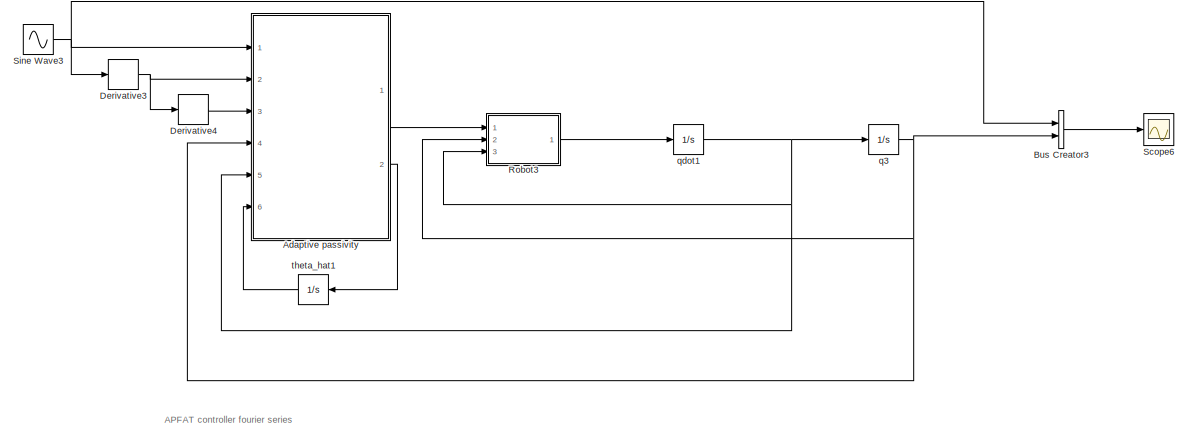
[diagram: root canvas - part 1/5, top center region]
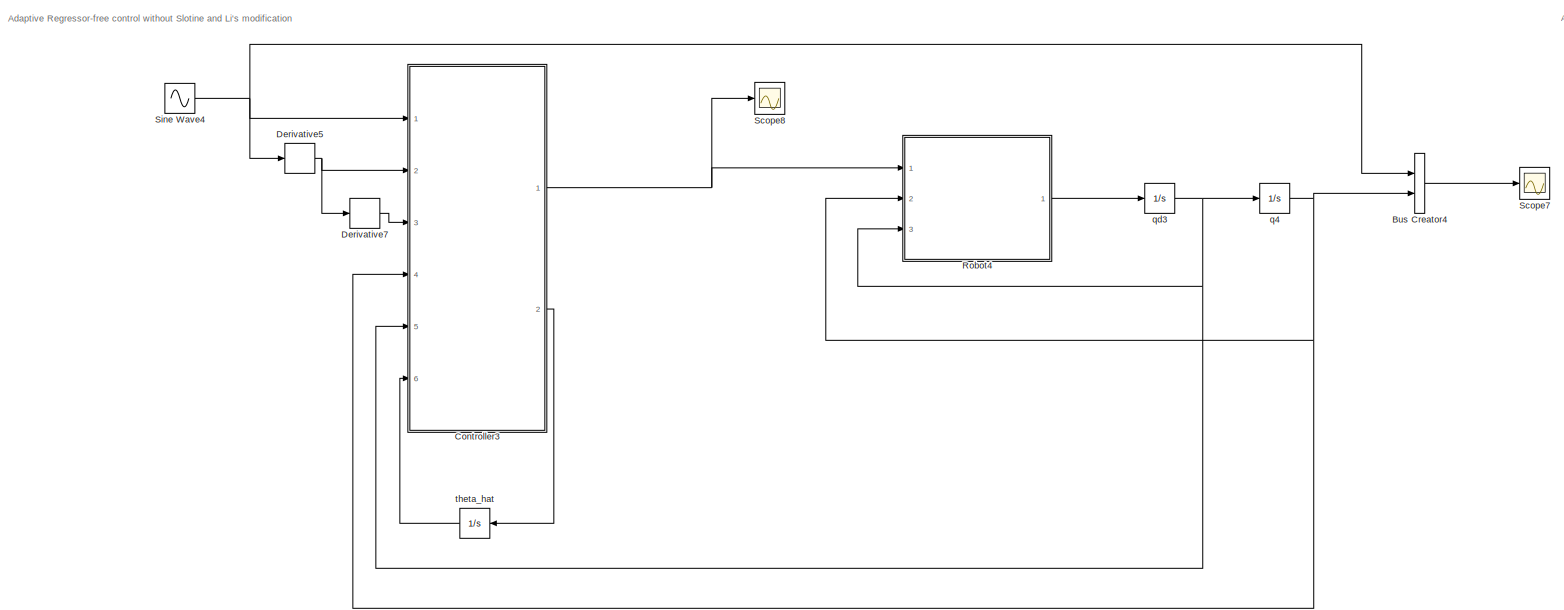
[diagram: root canvas - part 2/5, middle left region]
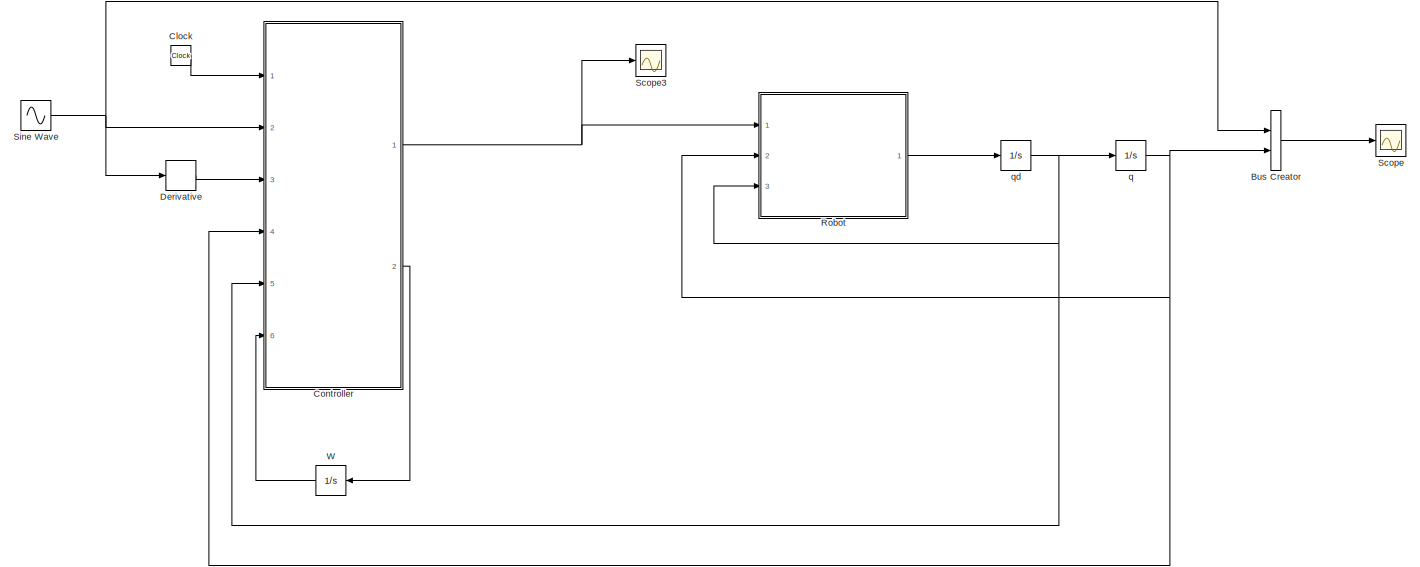
[diagram: root canvas - part 3/5, middle right region]
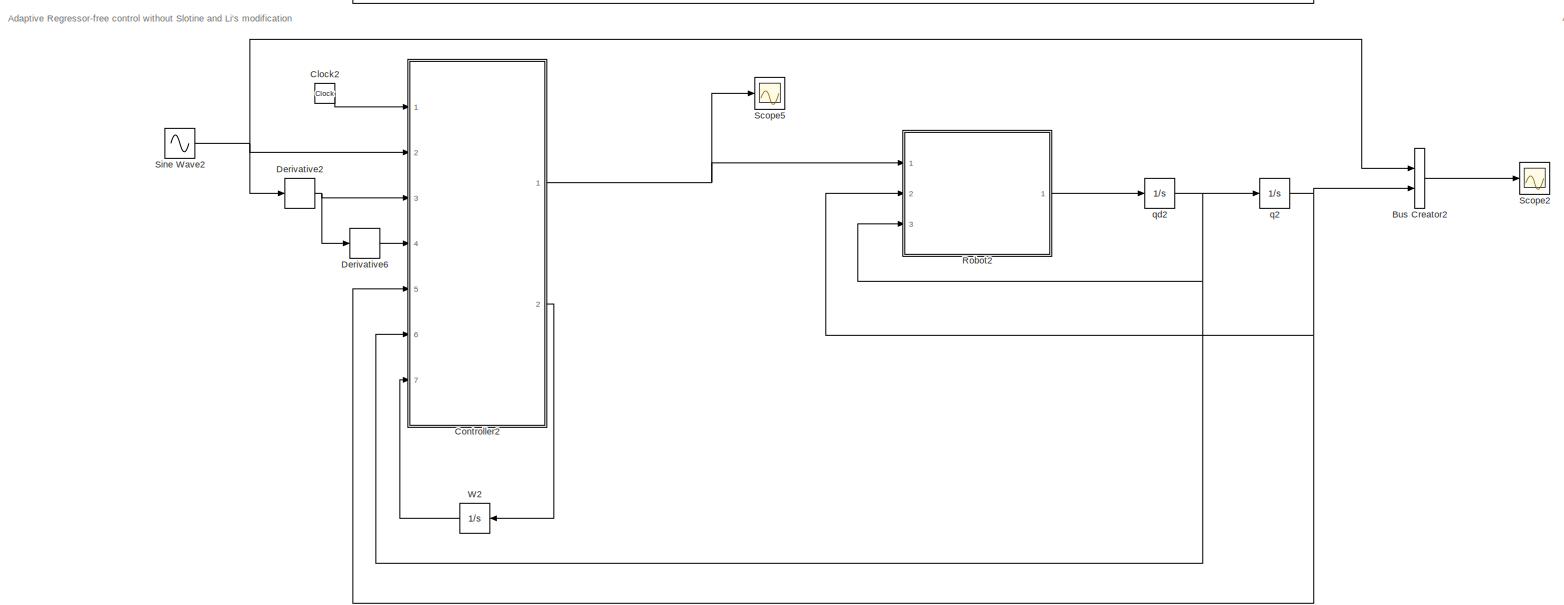
[diagram: root canvas - part 4/5, bottom left region]
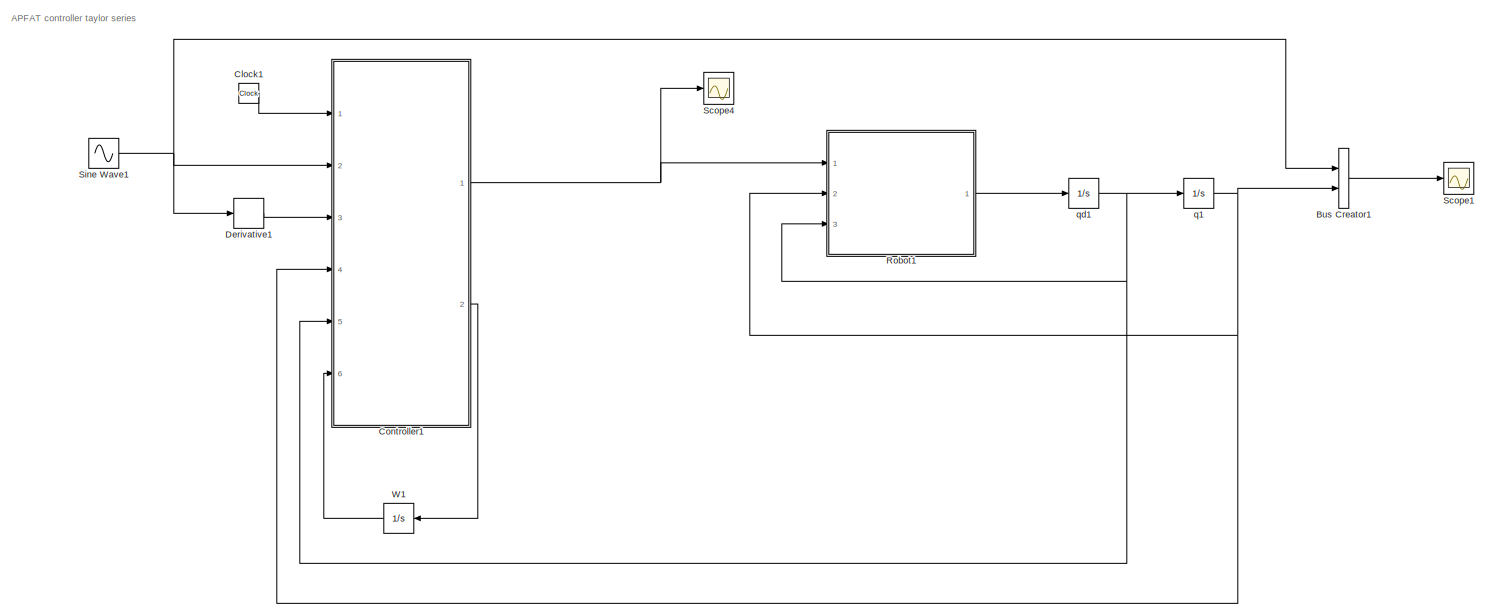
[diagram: root canvas - part 5/5, bottom right region]
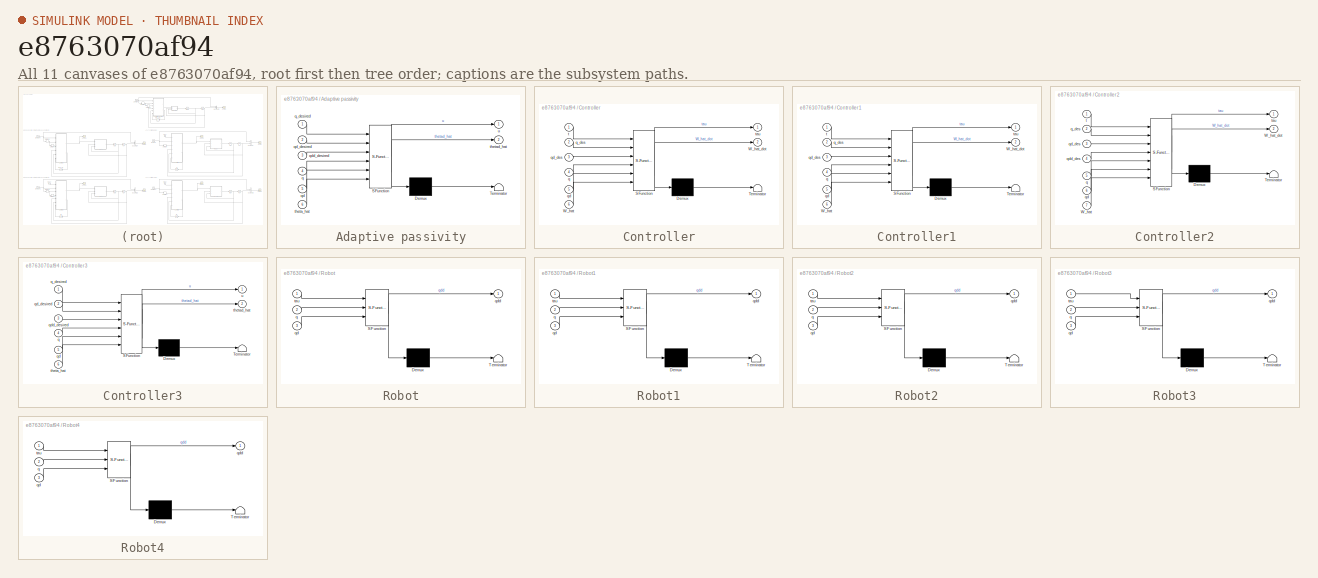
[diagram: thumbnail index - all 11 canvases of the model, root first then tree order]
MODEL slx_e8763070af94
KIND model
CONFIG AbsTol = auto
CONFIG EnableMultiTasking = off
CONFIG FixedStep = auto
CONFIG MaxStep = auto
CONFIG MinStep = auto
CONFIG RelTol = 1e-3
CONFIG SampleTimeConstraint = Unconstrained
CONFIG Solver = VariableStepAuto
CONFIG SolverName = VariableStepAuto
CONFIG StartTime = 0.0
CONFIG StopTime = 15.0
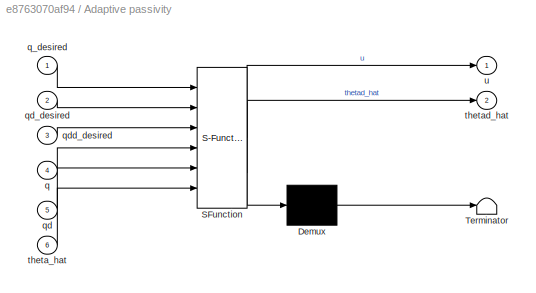
BLOCK [SubSystem] Adaptive passivity
  Commented = on
  ErrorFcn = Stateflow.Translate.translate
  PermitHierarchicalResolution = ExplicitOnly
  Ports = [6, 2]
  RequestExecContextInheritance = off
  SFBlockType = MATLAB Function
  TreatAsAtomicUnit = on
  Variant = off
BLOCK [Demux] Adaptive passivity/ Demux 
  Outputs = 1
  Ports = [1, 1]
BLOCK [S-Function] Adaptive passivity/ SFunction 
  EnableBusSupport = on
  FunctionName = sf_sfun
  PortCounts = [6 3]
  Ports = [6, 3]
  SFcnIsStateOwnerBlock = off
  SFunctionDeploymentMode = off
  Tag = Stateflow S-Function fat 5
BLOCK [Terminator] Adaptive passivity/ Terminator 
BLOCK [Inport] Adaptive passivity/q
  IconDisplay = Port number
  Port = 4
BLOCK [Inport] Adaptive passivity/q_desired
  IconDisplay = Port number
BLOCK [Inport] Adaptive passivity/qd
  IconDisplay = Port number
  Port = 5
BLOCK [Inport] Adaptive passivity/qd_desired
  IconDisplay = Port number
  Port = 2
BLOCK [Inport] Adaptive passivity/qdd_desired
  IconDisplay = Port number
  Port = 3
BLOCK [Inport] Adaptive passivity/theta_hat
  IconDisplay = Port number
  Port = 6
BLOCK [Outport] Adaptive passivity/thetad_hat
  IconDisplay = Port number
  Port = 2
BLOCK [Outport] Adaptive passivity/u
  IconDisplay = Port number
BLOCK [BusCreator] Bus Creator
  DisplayOption = bar
  InheritFromInputs = on
  Inputs = 2
  Ports = [2, 1]
BLOCK [BusCreator] Bus Creator1
  DisplayOption = bar
  InheritFromInputs = on
  Inputs = 2
  Ports = [2, 1]
BLOCK [BusCreator] Bus Creator2
  DisplayOption = bar
  InheritFromInputs = on
  Inputs = 2
  Ports = [2, 1]
BLOCK [BusCreator] Bus Creator3
  Commented = on
  DisplayOption = bar
  InheritFromInputs = on
  Inputs = 2
  Ports = [2, 1]
BLOCK [BusCreator] Bus Creator4
  DisplayOption = bar
  InheritFromInputs = on
  Inputs = 2
  Ports = [2, 1]
BLOCK [Clock] Clock
BLOCK [Clock] Clock1
BLOCK [Clock] Clock2
BLOCK [SubSystem] Controller
  ErrorFcn = Stateflow.Translate.translate
  PermitHierarchicalResolution = ExplicitOnly
  Ports = [6, 2]
  RequestExecContextInheritance = off
  SFBlockType = MATLAB Function
  TreatAsAtomicUnit = on
  Variant = off
BLOCK [Demux] Controller/ Demux 
  Outputs = 1
  Ports = [1, 1]
BLOCK [S-Function] Controller/ SFunction 
  EnableBusSupport = on
  FunctionName = sf_sfun
  PortCounts = [6 3]
  Ports = [6, 3]
  SFcnIsStateOwnerBlock = off
  SFunctionDeploymentMode = off
  Tag = Stateflow S-Function fat 7
BLOCK [Terminator] Controller/ Terminator 
BLOCK [Inport] Controller/W_hat
  IconDisplay = Port number
  Port = 6
BLOCK [Outport] Controller/W_hat_dot
  IconDisplay = Port number
  Port = 2
BLOCK [Inport] Controller/q
  IconDisplay = Port number
  Port = 4
BLOCK [Inport] Controller/q_des
  IconDisplay = Port number
  Port = 2
BLOCK [Inport] Controller/qd
  IconDisplay = Port number
  Port = 5
BLOCK [Inport] Controller/qd_des
  IconDisplay = Port number
  Port = 3
BLOCK [Inport] Controller/t
  IconDisplay = Port number
BLOCK [Outport] Controller/tau
  IconDisplay = Port number
BLOCK [SubSystem] Controller1
  ErrorFcn = Stateflow.Translate.translate
  PermitHierarchicalResolution = ExplicitOnly
  Ports = [6, 2]
  RequestExecContextInheritance = off
  SFBlockType = MATLAB Function
  TreatAsAtomicUnit = on
  Variant = off
BLOCK [Demux] Controller1/ Demux 
  Outputs = 1
  Ports = [1, 1]
BLOCK [S-Function] Controller1/ SFunction 
  EnableBusSupport = on
  FunctionName = sf_sfun
  PortCounts = [6 3]
  Ports = [6, 3]
  SFcnIsStateOwnerBlock = off
  SFunctionDeploymentMode = off
  Tag = Stateflow S-Function fat 1
BLOCK [Terminator] Controller1/ Terminator 
BLOCK [Inport] Controller1/W_hat
  IconDisplay = Port number
  Port = 6
BLOCK [Outport] Controller1/W_hat_dot
  IconDisplay = Port number
  Port = 2
BLOCK [Inport] Controller1/q
  IconDisplay = Port number
  Port = 4
BLOCK [Inport] Controller1/q_des
  IconDisplay = Port number
  Port = 2
BLOCK [Inport] Controller1/qd
  IconDisplay = Port number
  Port = 5
BLOCK [Inport] Controller1/qd_des
  IconDisplay = Port number
  Port = 3
BLOCK [Inport] Controller1/t
  IconDisplay = Port number
BLOCK [Outport] Controller1/tau
  IconDisplay = Port number
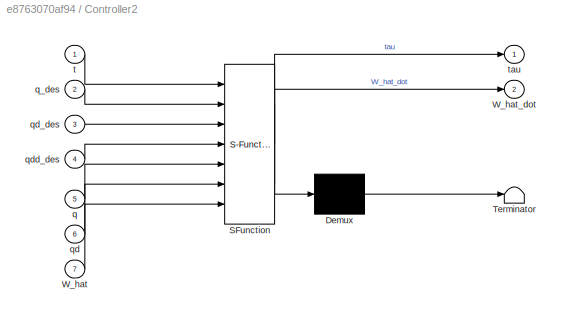
BLOCK [SubSystem] Controller2
  ErrorFcn = Stateflow.Translate.translate
  PermitHierarchicalResolution = ExplicitOnly
  Ports = [7, 2]
  RequestExecContextInheritance = off
  SFBlockType = MATLAB Function
  TreatAsAtomicUnit = on
  Variant = off
BLOCK [Demux] Controller2/ Demux 
  Outputs = 1
  Ports = [1, 1]
BLOCK [S-Function] Controller2/ SFunction 
  EnableBusSupport = on
  FunctionName = sf_sfun
  PortCounts = [7 3]
  Ports = [7, 3]
  SFcnIsStateOwnerBlock = off
  SFunctionDeploymentMode = off
  Tag = Stateflow S-Function fat 3
BLOCK [Terminator] Controller2/ Terminator 
BLOCK [Inport] Controller2/W_hat
  IconDisplay = Port number
  Port = 7
BLOCK [Outport] Controller2/W_hat_dot
  IconDisplay = Port number
  Port = 2
BLOCK [Inport] Controller2/q
  IconDisplay = Port number
  Port = 5
BLOCK [Inport] Controller2/q_des
  IconDisplay = Port number
  Port = 2
BLOCK [Inport] Controller2/qd
  IconDisplay = Port number
  Port = 6
BLOCK [Inport] Controller2/qd_des
  IconDisplay = Port number
  Port = 3
BLOCK [Inport] Controller2/qdd_des
  IconDisplay = Port number
  Port = 4
BLOCK [Inport] Controller2/t
  IconDisplay = Port number
BLOCK [Outport] Controller2/tau
  IconDisplay = Port number
BLOCK [SubSystem] Controller3
  ErrorFcn = Stateflow.Translate.translate
  PermitHierarchicalResolution = ExplicitOnly
  Ports = [6, 2]
  RequestExecContextInheritance = off
  SFBlockType = MATLAB Function
  TreatAsAtomicUnit = on
  Variant = off
BLOCK [Demux] Controller3/ Demux 
  Outputs = 1
  Ports = [1, 1]
BLOCK [S-Function] Controller3/ SFunction 
  EnableBusSupport = on
  FunctionName = sf_sfun
  PortCounts = [6 3]
  Ports = [6, 3]
  SFcnIsStateOwnerBlock = off
  SFunctionDeploymentMode = off
  Tag = Stateflow S-Function fat 9
BLOCK [Terminator] Controller3/ Terminator 
BLOCK [Inport] Controller3/q
  IconDisplay = Port number
  Port = 4
BLOCK [Inport] Controller3/q_desired
  IconDisplay = Port number
BLOCK [Inport] Controller3/qd
  IconDisplay = Port number
  Port = 5
BLOCK [Inport] Controller3/qd_desired
  IconDisplay = Port number
  Port = 2
BLOCK [Inport] Controller3/qdd_desired
  IconDisplay = Port number
  Port = 3
BLOCK [Inport] Controller3/theta_hat
  IconDisplay = Port number
  Port = 6
BLOCK [Outport] Controller3/thetad_hat
  IconDisplay = Port number
  Port = 2
BLOCK [Outport] Controller3/u
  IconDisplay = Port number
BLOCK [Derivative] Derivative
BLOCK [Derivative] Derivative1
BLOCK [Derivative] Derivative2
BLOCK [Derivative] Derivative3
  Commented = on
BLOCK [Derivative] Derivative4
  Commented = on
BLOCK [Derivative] Derivative5
BLOCK [Derivative] Derivative6
BLOCK [Derivative] Derivative7
BLOCK [SubSystem] Robot
  ErrorFcn = Stateflow.Translate.translate
  PermitHierarchicalResolution = ExplicitOnly
  Ports = [3, 1]
  RequestExecContextInheritance = off
  SFBlockType = MATLAB Function
  TreatAsAtomicUnit = on
  Variant = off
BLOCK [Demux] Robot/ Demux 
  Outputs = 1
  Ports = [1, 1]
BLOCK [S-Function] Robot/ SFunction 
  EnableBusSupport = on
  FunctionName = sf_sfun
  PortCounts = [3 2]
  Ports = [3, 2]
  SFcnIsStateOwnerBlock = off
  SFunctionDeploymentMode = off
  Tag = Stateflow S-Function fat 6
BLOCK [Terminator] Robot/ Terminator 
BLOCK [Inport] Robot/q
  IconDisplay = Port number
  Port = 2
BLOCK [Inport] Robot/qd
  IconDisplay = Port number
  Port = 3
BLOCK [Outport] Robot/qdd
  IconDisplay = Port number
BLOCK [Inport] Robot/tau
  IconDisplay = Port number
BLOCK [SubSystem] Robot1
  ErrorFcn = Stateflow.Translate.translate
  PermitHierarchicalResolution = ExplicitOnly
  Ports = [3, 1]
  RequestExecContextInheritance = off
  SFBlockType = MATLAB Function
  TreatAsAtomicUnit = on
  Variant = off
BLOCK [Demux] Robot1/ Demux 
  Outputs = 1
  Ports = [1, 1]
BLOCK [S-Function] Robot1/ SFunction 
  EnableBusSupport = on
  FunctionName = sf_sfun
  PortCounts = [3 2]
  Ports = [3, 2]
  SFcnIsStateOwnerBlock = off
  SFunctionDeploymentMode = off
  Tag = Stateflow S-Function fat 2
BLOCK [Terminator] Robot1/ Terminator 
BLOCK [Inport] Robot1/q
  IconDisplay = Port number
  Port = 2
BLOCK [Inport] Robot1/qd
  IconDisplay = Port number
  Port = 3
BLOCK [Outport] Robot1/qdd
  IconDisplay = Port number
BLOCK [Inport] Robot1/tau
  IconDisplay = Port number
BLOCK [SubSystem] Robot2
  ErrorFcn = Stateflow.Translate.translate
  PermitHierarchicalResolution = ExplicitOnly
  Ports = [3, 1]
  RequestExecContextInheritance = off
  SFBlockType = MATLAB Function
  TreatAsAtomicUnit = on
  Variant = off
BLOCK [Demux] Robot2/ Demux 
  Outputs = 1
  Ports = [1, 1]
BLOCK [S-Function] Robot2/ SFunction 
  EnableBusSupport = on
  FunctionName = sf_sfun
  PortCounts = [3 2]
  Ports = [3, 2]
  SFcnIsStateOwnerBlock = off
  SFunctionDeploymentMode = off
  Tag = Stateflow S-Function fat 4
BLOCK [Terminator] Robot2/ Terminator 
BLOCK [Inport] Robot2/q
  IconDisplay = Port number
  Port = 2
BLOCK [Inport] Robot2/qd
  IconDisplay = Port number
  Port = 3
BLOCK [Outport] Robot2/qdd
  IconDisplay = Port number
BLOCK [Inport] Robot2/tau
  IconDisplay = Port number
BLOCK [SubSystem] Robot3
  Commented = on
  ErrorFcn = Stateflow.Translate.translate
  PermitHierarchicalResolution = ExplicitOnly
  Ports = [3, 1]
  RequestExecContextInheritance = off
  SFBlockType = MATLAB Function
  TreatAsAtomicUnit = on
  Variant = off
BLOCK [Demux] Robot3/ Demux 
  Outputs = 1
  Ports = [1, 1]
BLOCK [S-Function] Robot3/ SFunction 
  EnableBusSupport = on
  FunctionName = sf_sfun
  PortCounts = [3 2]
  Ports = [3, 2]
  SFcnIsStateOwnerBlock = off
  SFunctionDeploymentMode = off
  Tag = Stateflow S-Function fat 8
BLOCK [Terminator] Robot3/ Terminator 
BLOCK [Inport] Robot3/q
  IconDisplay = Port number
  Port = 2
BLOCK [Inport] Robot3/qd
  IconDisplay = Port number
  Port = 3
BLOCK [Outport] Robot3/qdd
  IconDisplay = Port number
BLOCK [Inport] Robot3/tau
  IconDisplay = Port number
BLOCK [SubSystem] Robot4
  ErrorFcn = Stateflow.Translate.translate
  PermitHierarchicalResolution = ExplicitOnly
  Ports = [3, 1]
  RequestExecContextInheritance = off
  SFBlockType = MATLAB Function
  TreatAsAtomicUnit = on
  Variant = off
BLOCK [Demux] Robot4/ Demux 
  Outputs = 1
  Ports = [1, 1]
BLOCK [S-Function] Robot4/ SFunction 
  EnableBusSupport = on
  FunctionName = sf_sfun
  PortCounts = [3 2]
  Ports = [3, 2]
  SFcnIsStateOwnerBlock = off
  SFunctionDeploymentMode = off
  Tag = Stateflow S-Function fat 10
BLOCK [Terminator] Robot4/ Terminator 
BLOCK [Inport] Robot4/q
  IconDisplay = Port number
  Port = 2
BLOCK [Inport] Robot4/qd
  IconDisplay = Port number
  Port = 3
BLOCK [Outport] Robot4/qdd
  IconDisplay = Port number
BLOCK [Inport] Robot4/tau
  IconDisplay = Port number
BLOCK [Scope] Scope
  NumInputPorts = 1
  Ports = [1]
  ScopeSpecificationString = Simulink.scopes.TimeScopeBlockCfg('CurrentConfiguration', extmgr.ConfigurationSet(extmgr.Configuration('Core','General UI',true,'FigureColor',[1 1 1]),extmgr.Configuration('Core','Source UI',true),extmgr.Configuration('Sources','WiredSimulink',true),extmgr.Configuration('Visuals','Time Domain',true,'SerializedDisplays',{struct('MinYLimReal','-2.51386','MaxYLimReal','1.61265','YLabelReal','','MinYL...<+1452ch>
BLOCK [Scope] Scope1
  NumInputPorts = 1
  Ports = [1]
  ScopeSpecificationString = Simulink.scopes.TimeScopeBlockCfg('CurrentConfiguration', extmgr.ConfigurationSet(extmgr.Configuration('Core','General UI',true,'FigureColor',[1 1 1]),extmgr.Configuration('Core','Source UI',true),extmgr.Configuration('Sources','WiredSimulink',true,'DataLoggingVariableName','ScopeData1','DataLoggingSaveFormat','Array','DataLoggingDecimation','1','DataLoggingDecimateData',true),extmgr.Configuration...<+1661ch>
BLOCK [Scope] Scope2
  NumInputPorts = 1
  Ports = [1]
  ScopeSpecificationString = Simulink.scopes.TimeScopeBlockCfg('CurrentConfiguration', extmgr.ConfigurationSet(extmgr.Configuration('Core','General UI',true),extmgr.Configuration('Core','Source UI',true),extmgr.Configuration('Sources','WiredSimulink',true,'DataLoggingVariableName','ScopeData1','DataLoggingLimitDataPoints',true,'DataLoggingSaveFormat','Array','DataLoggingDecimation','1','DataLoggingDecimateData',true),extmgr.C...<+1620ch>
BLOCK [Scope] Scope3
  NumInputPorts = 1
  Ports = [1]
  ScopeSpecificationString = Simulink.scopes.TimeScopeBlockCfg('CurrentConfiguration', extmgr.ConfigurationSet(extmgr.Configuration('Core','General UI',true,'FigureColor',[1 1 1]),extmgr.Configuration('Core','Source UI',true),extmgr.Configuration('Sources','WiredSimulink',true,'DataLoggingVariableName','ScopeData1'),extmgr.Configuration('Visuals','Time Domain',true,'SerializedDisplays',{struct('MinYLimReal','-46.57696','MaxYL...<+1538ch>
BLOCK [Scope] Scope4
  NumInputPorts = 1
  Ports = [1]
  ScopeSpecificationString = Simulink.scopes.TimeScopeBlockCfg('CurrentConfiguration', extmgr.ConfigurationSet(extmgr.Configuration('Core','General UI',true,'FigureColor',[1 1 1]),extmgr.Configuration('Core','Source UI',true),extmgr.Configuration('Sources','WiredSimulink',true,'DataLoggingVariableName','ScopeData2'),extmgr.Configuration('Visuals','Time Domain',true,'SerializedDisplays',{struct('MinYLimReal','-46.86152','MaxYL...<+1541ch>
BLOCK [Scope] Scope5
  NumInputPorts = 1
  Ports = [1]
  ScopeSpecificationString = Simulink.scopes.TimeScopeBlockCfg('CurrentConfiguration', extmgr.ConfigurationSet(extmgr.Configuration('Core','General UI',true,'FigureColor',[1 1 1]),extmgr.Configuration('Core','Source UI',true),extmgr.Configuration('Sources','WiredSimulink',true,'DataLoggingVariableName','ScopeData3'),extmgr.Configuration('Visuals','Time Domain',true,'SerializedDisplays',{struct('MinYLimReal','-46.57696','MaxYL...<+1538ch>
BLOCK [Scope] Scope6
  Commented = on
  NumInputPorts = 1
  Ports = [1]
  ScopeSpecificationString = C++SS(StrPVP('SaveName','ScopeData1'),StrPVP('SaveName','ScopeData1'))
BLOCK [Scope] Scope7
  NumInputPorts = 1
  Ports = [1]
  ScopeSpecificationString = C++SS(StrPVP('SaveName','ScopeData2'))
BLOCK [Scope] Scope8
  NumInputPorts = 1
  Ports = [1]
  ScopeSpecificationString = C++SS(StrPVP('SaveName','ScopeData3'))
BLOCK [Sin] Sine Wave
  Amplitude = [1; 0.25; 0.5]
  Bias = [0; 0 ; -pi/2]
  Frequency = 2
  Ports = [0, 1]
  SampleTime = 0
BLOCK [Sin] Sine Wave1
  Amplitude = [1; 0.25; 0.5]
  Bias = [0; 0 ; -pi/2]
  Frequency = 2
  Ports = [0, 1]
  SampleTime = 0
BLOCK [Sin] Sine Wave2
  Amplitude = [1; 0.25; 0.5]
  Bias = [0; 0 ; -pi/2]
  Frequency = 2
  Ports = [0, 1]
  SampleTime = 0
BLOCK [Sin] Sine Wave3
  Amplitude = ones(3,1)*0
  Bias = ones(3,1)*10
  Commented = on
  Ports = [0, 1]
  SampleTime = 0
BLOCK [Sin] Sine Wave4
  Amplitude = [1; 0.25; 0.5]
  Bias = [0; 0 ; -pi/2]
  Frequency = 2
  Ports = [0, 1]
  SampleTime = 0
BLOCK [Integrator] W
  InitialCondition = zeros(3*9,3)
  Ports = [1, 1]
BLOCK [Integrator] W1
  InitialCondition = zeros(3*3,3)
  Ports = [1, 1]
BLOCK [Integrator] W2
  InitialCondition = zeros(3*3,3)
  Ports = [1, 1]
BLOCK [Integrator] q
  InitialCondition = [1.2; -1.2; 0.5]
  Ports = [1, 1]
BLOCK [Integrator] q1
  InitialCondition = [1.2; -1.2; 0.5]
  Ports = [1, 1]
BLOCK [Integrator] q2
  InitialCondition = [1.2; -1.2; 0.5]
  Ports = [1, 1]
BLOCK [Integrator] q3
  Commented = on
  InitialCondition = [0 0 0]'
  Ports = [1, 1]
BLOCK [Integrator] q4
  InitialCondition = [1.2; -1.2; 0.5]
  Ports = [1, 1]
BLOCK [Integrator] qd
  InitialCondition = zeros(3,1)
  Ports = [1, 1]
BLOCK [Integrator] qd1
  InitialCondition = zeros(3,1)
  Ports = [1, 1]
BLOCK [Integrator] qd2
  InitialCondition = zeros(3,1)
  Ports = [1, 1]
BLOCK [Integrator] qd3
  InitialCondition = zeros(3,1)
  Ports = [1, 1]
BLOCK [Integrator] qdot1
  Commented = on
  InitialCondition = [0 0 0]'
  Ports = [1, 1]
BLOCK [Integrator] theta_hat
  InitialCondition = zeros(3,1)
  Ports = [1, 1]
BLOCK [Integrator] theta_hat1
  Commented = on
  InitialCondition = [5.6542\n    1.1574\n    2.3321\n    6.5314\n    0.6524]'
  Ports = [1, 1]
ANNOTATION (root): APFAT controller fourier series
ANNOTATION (root): APFAT controller taylor series
ANNOTATION (root): Adaptive Regressor-free control without Slotine and Li's modification
LINE Adaptive passivity:1 -> Robot3:1
LINE Adaptive passivity:2 -> theta_hat1:1
LINE Bus Creator1:1 -> Scope1:1
LINE Bus Creator2:1 -> Scope2:1
LINE Bus Creator3:1 -> Scope6:1
LINE Bus Creator4:1 -> Scope7:1
LINE Bus Creator:1 -> Scope:1
LINE Clock1:1 -> Controller1:1
LINE Clock2:1 -> Controller2:1
LINE Clock:1 -> Controller:1
NET Controller1:1 -> Robot1:1, Scope4:1
LINE Controller1:2 -> W1:1
NET Controller2:1 -> Robot2:1, Scope5:1
LINE Controller2:2 -> W2:1
NET Controller3:1 -> Robot4:1, Scope8:1
LINE Controller3:2 -> theta_hat:1
NET Controller:1 -> Robot:1, Scope3:1
LINE Controller:2 -> W:1
LINE Derivative1:1 -> Controller1:3
NET Derivative2:1 -> Controller2:3, Derivative6:1
NET Derivative3:1 -> Adaptive passivity:2, Derivative4:1
LINE Derivative4:1 -> Adaptive passivity:3
NET Derivative5:1 -> Controller3:2, Derivative7:1
LINE Derivative6:1 -> Controller2:4
LINE Derivative7:1 -> Controller3:3
LINE Derivative:1 -> Controller:3
LINE Robot1:1 -> qd1:1
LINE Robot2:1 -> qd2:1
LINE Robot3:1 -> qdot1:1
LINE Robot4:1 -> qd3:1
LINE Robot:1 -> qd:1
NET Sine Wave1:1 -> Bus Creator1:1, Controller1:2, Derivative1:1
NET Sine Wave2:1 -> Bus Creator2:1, Controller2:2, Derivative2:1
NET Sine Wave3:1 -> Adaptive passivity:1, Bus Creator3:1, Derivative3:1
NET Sine Wave4:1 -> Bus Creator4:1, Controller3:1, Derivative5:1
NET Sine Wave:1 -> Bus Creator:1, Controller:2, Derivative:1
LINE W1:1 -> Controller1:6
LINE W2:1 -> Controller2:7
LINE W:1 -> Controller:6
NET q1:1 -> Bus Creator1:2, Controller1:4, Robot1:2
NET q2:1 -> Bus Creator2:2, Controller2:5, Robot2:2
NET q3:1 -> Adaptive passivity:4, Bus Creator3:2, Robot3:2
NET q4:1 -> Bus Creator4:2, Controller3:4, Robot4:2
NET q:1 -> Bus Creator:2, Controller:4, Robot:2
NET qd1:1 -> Controller1:5, Robot1:3, q1:1
NET qd2:1 -> Controller2:6, Robot2:3, q2:1
NET qd3:1 -> Controller3:5, Robot4:3, q4:1
NET qd:1 -> Controller:5, Robot:3, q:1
NET qdot1:1 -> Adaptive passivity:5, Robot3:3, q3:1
LINE theta_hat1:1 -> Adaptive passivity:6
LINE theta_hat:1 -> Controller3:6
note: NET lines group one-source signal fan-out (src -> all destinations, sorted); 1:1 wires keep LINE
CHART Controller1 states=1 transitions=1
  STATE_LABEL 'eML_blk_kernel()'
  STATE_LABEL "SCRIPT:\nfunction [tau, W_hat_dot] = fcn(t, q_des, qd_des, q, qd, W_hat)\n\ngamma = diag([6 35 6]);\nr = (qd - qd_des) + gamma * (q - q_des);\n\nzz = [1; t; t^2];\n\nZ = [zz' zz' zz']';\n\nK = diag([30 300 30]);\n\ntau = transpose(W_hat)*Z - K*r;\n\n% update\nQ = 300*eye(3*3); % 3Bx3B\nsigma = 0.009;\n\nW_hat_dot = -pinv(Q)*(Z*transpose(r) + sigma*W_hat); %3Bx3\n\n"
CHART Robot1 states=1 transitions=1
  STATE_LABEL 'eML_blk_kernel()'
  STATE_LABEL 'SCRIPT:\nfunction qdd = fcn(tau, q, qd)\n\ng = 9.81;\n\ntheta1 = q(1);\ntheta2 = q(2);\ntheta3 = q(3);\nqd1 = qd(1);\nqd2 = qd(2);\nqd3 = qd(3);\n\nG1 = 0;\nG2 = -(9*g*(803*cos(theta2)*cos(theta3) - 803*sin(theta2)*sin(theta3) + 4728*sin(theta2)))/10000;\nG3 = -(7227*g*(cos(theta2)*cos(theta3) - sin(theta2)*sin(theta3)))/10000;\nD11 = ((1300860*cos(theta3)^2 + 5203440*sin(theta3) - 13513230)*cos(theta2)^2)/10000...<+1460ch>'  <repeated x4 — deduplicated; at blocks: Robot1, Robot2, Robot, Robot4>
CHART Controller2 states=1 transitions=1
  STATE_LABEL 'eML_blk_kernel()'
  STATE_LABEL 'SCRIPT:\nfunction [tau, W_hat_dot] = fcn(t, q_des, qd_des, qdd_des, q, qd, W_hat)\n\ne = q - q_des;\ned = qd - qd_des;\n\nfn = 3;\n\nzz = [1; cos(fn*t)*sin(fn*t); cos(2*fn*t)*sin(2*fn*t)];\n\nZ = [zz; zz; zz]; % nB\n\nKd = diag([30 300 30]);\nKp = diag([30 300 30]);\n\ntau = transpose(W_hat)*Z + qdd_des - Kp*e - Kd*ed;\n\n% update\n%Q = eye(2*3); % 2n x 2n\n%A = [zeros(3) eye(3); -Kp, -Kd];\nB = [zeros(3); eye(3)];\n%...<+532ch>'
CHART Robot2 states=1 transitions=1
  STATE_LABEL 'eML_blk_kernel()'
CHART Adaptive passivity states=1 transitions=1
  STATE_LABEL 'eML_blk_kernel()'
  STATE_LABEL 'SCRIPT:\nfunction [u, thetad_hat] = fcn( q_desired, qd_desired, qdd_desired, q, qd,theta_hat)\n\ng = 9.81;\nq1 = q(1);\nq2 = q(2);\nq3 = q(3);\n\nqd1 = qd(1);\nqd2 = qd(2);\nqd3 = qd(3);\n\ne_q = q - q_desired;\ne_qd = qd - qd_desired;\n\ngamma = eye(3);\nv = qd_desired - gamma*e_q;\nvd = qdd_desired - gamma*e_qd;\nr = qd - v;\n\nwn = 10;\nKd = eye(3)*wn^2;\nKp = eye(3)*2*wn;\nqdd1 = vd(1);\nqdd2 = vd(2);\nqdd3 = vd(3);\n\n...<+319ch>'
CHART Robot states=1 transitions=1
  STATE_LABEL 'eML_blk_kernel()'
CHART Controller states=1 transitions=1
  STATE_LABEL 'eML_blk_kernel()'
  STATE_LABEL "SCRIPT:\nfunction [tau, W_hat_dot] = fcn(t, q_des, qd_des, q, qd, W_hat)\n\ngamma = diag([6 35 6]);\nr = (qd - qd_des) + gamma * (q - q_des);\n\nfn = 10;\nzz = [1; cos(fn*t)*sin(fn*t); cos(2*fn*t)*sin(2*fn*t); cos(3*fn*t)*sin(3*fn*t); cos(4*fn*t)*sin(4*fn*t);...\n    cos(5*fn*t)*sin(5*fn*t); cos(6*fn*t)*sin(6*fn*t); cos(7*fn*t)*sin(7*fn*t); cos(8*fn*t)*sin(8*fn*t)];\n\nZ = [zz' zz' zz']';\n\nK = diag([30 300 ...<+151ch>"
CHART Robot3 states=1 transitions=1
  STATE_LABEL 'eML_blk_kernel()'
  STATE_LABEL 'SCRIPT:\nfunction qdd = fcn(tau, q, qd)\n\na1 = 0.6;\na2 = 0.4;\n\nLc1 = 0.3;\nLc2 = 0.2;\n\ng = 9.81;\nm1 = 12;\nm2 = 6;\nm3 = 6;\nI1 = 0.36;\nI2 = 0.36;\nI3 = 0.36;\n\nq1 = q(1);\nq2 = q(2);\nq3 = q(3);\nqd1 = qd(1);\nqd2 = qd(2);\nqd3 = qd(3);\n\nd11 = m1*Lc1^2 + m2*(a1^2 + Lc2^2 + 2*a1*Lc2*cos(q2)) + m3*(a1^2 + a2^2 + 2*a1*a2*cos(q2)) + I1 + I2 + I3;\nd12 = m2*(Lc2^2 + a1*Lc2*cos(q2)) + m3*(a2^2 + a1*a2*cos(q2)) + I2 ...<+266ch>'
CHART Controller3 states=1 transitions=1
  STATE_LABEL 'eML_blk_kernel()'
  STATE_LABEL 'SCRIPT:\nfunction [u, thetad_hat] = fcn( q_desired, qd_desired, qdd_desired, q, qd,theta_hat)\n\ng = 9.81;\nq1 = q(1);\nq2 = q(2);\nq3 = q(3);\n\nqd1 = qd(1);\nqd2 = qd(2);\nqd3 = qd(3);\n\ne_q = q - q_desired;\ne_qd = qd - qd_desired;\n\ngamma = eye(3);\nv = qd_desired - gamma*e_q;\nvd = qdd_desired - gamma*e_qd;\nr = qd - v;\n\nwn = 10;\nKd = eye(3)*wn^2;\nKp = eye(3)*2*wn;\nqdd1 = vd(1);\nqdd2 = vd(2);\nqdd3 = vd(3);\n\n...<+319ch>'
CHART Robot4 states=1 transitions=1
  STATE_LABEL 'eML_blk_kernel()'
